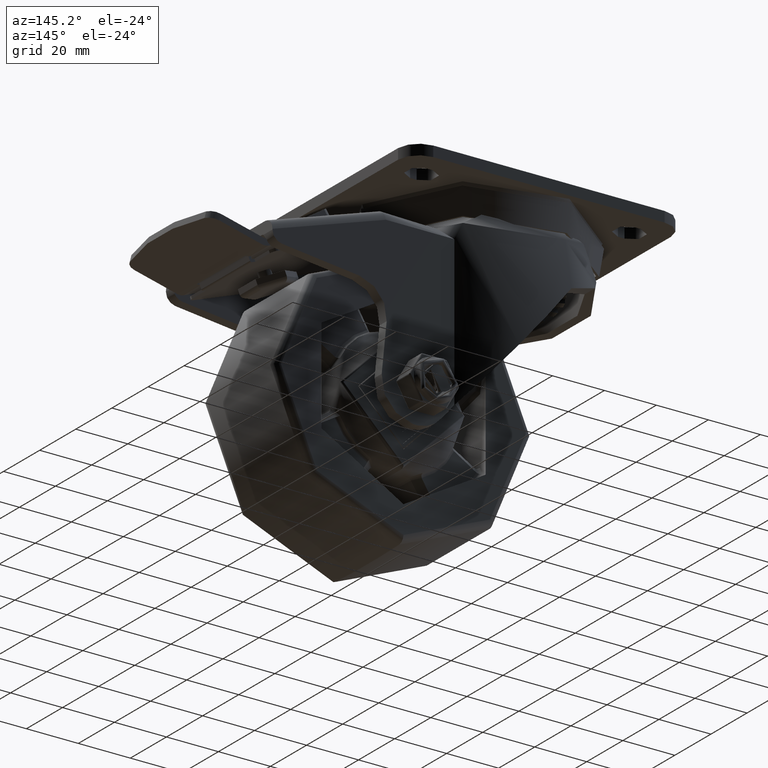
[diagram: clean part render]
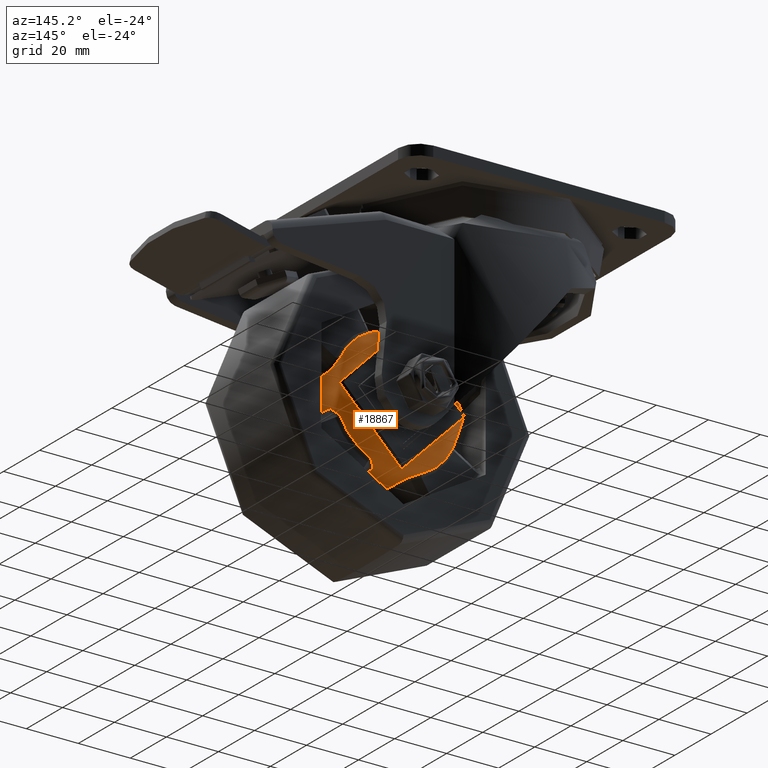
[diagram: same view with one face highlighted and labeled with its STEP entity id]
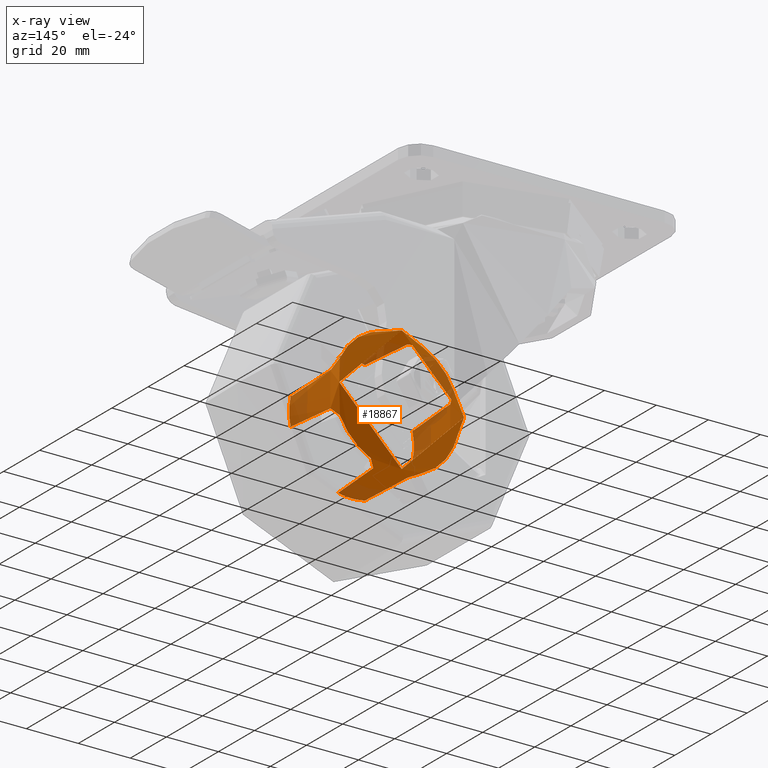
[diagram: x-ray of the same camera — body ghosted, the highlighted face saturated]
A machine part, auxiliary view. The second image highlights one B-rep face of the part: STEP entity #18867.
The next image is the same camera in x-ray: the body ghosted, the highlighted face saturated — about 24% of this face is hidden behind the body in this view.
In plain terms, the highlighted cylindrical surface (bore or boss wall) has radius 24 mm, axis along (0, 1, 0).
Its self-contained STEP definition (entity closure, byte-faithful):
#696=B_SPLINE_CURVE_WITH_KNOTS('',3,(#31149,#31150,#31151,#31152,#31153,
#31154,#31155,#31156,#31157,#31158,#31159,#31160,#31161,#31162),
 .UNSPECIFIED.,.F.,.F.,(4,2,2,2,2,2,4),(-0.0253063753522506,-0.0197658600162352,
-0.0143932390843415,-0.011035351001908,-0.00893667095038703,-0.00683799089886606,
-0.00376049390740104),.UNSPECIFIED.);
#697=B_SPLINE_CURVE_WITH_KNOTS('',3,(#31164,#31165,#31166,#31167,#31168,
#31169,#31170,#31171,#31172,#31173,#31174,#31175,#31176,#31177,#31178,#31179,
#31180,#31181,#31182,#31183,#31184,#31185),.UNSPECIFIED.,.F.,.F.,(4,2,2,
2,2,2,2,2,2,2,4),(-0.00566507899345334,-0.00468851007459817,-0.00376984885088175,
-0.00319568558605899,-0.00283253949673629,-0.00246939340741359,-0.00188835966449728,
-0.00142353267016422,-0.000958705675831167,-0.000324017549976875,-1.92437775949955E-14),
 .UNSPECIFIED.);
#698=B_SPLINE_CURVE_WITH_KNOTS('',3,(#31189,#31190,#31191,#31192,#31193,
#31194,#31195,#31196,#31197,#31198,#31199,#31200,#31201,#31202,#31203,#31204,
#31205,#31206,#31207,#31208,#31209,#31210),.UNSPECIFIED.,.F.,.F.,(4,2,2,
2,2,2,2,2,2,2,4),(-0.00566499455434328,-0.00508498353927795,-0.00451226049977383,
-0.00410714587022253,-0.00370203124067123,-0.00319563795373211,-0.00283249727717164,
-0.00246935660061117,-0.00188833151811443,-0.000958691386119632,-1.27817304099884E-18),
 .UNSPECIFIED.);
#699=B_SPLINE_CURVE_WITH_KNOTS('',3,(#31212,#31213,#31214,#31215,#31216,
#31217,#31218,#31219,#31220,#31221,#31222,#31223,#31224,#31225,#31226,#31227),
 .UNSPECIFIED.,.F.,.F.,(4,2,2,2,2,2,2,4),(-0.0215458982741363,-0.0194708431312115,
-0.0164753288033328,-0.0146031323484086,-0.0127309358934844,-0.00973542156560573,
-0.00494259864099983,0.),.UNSPECIFIED.);
#700=B_SPLINE_CURVE_WITH_KNOTS('',3,(#31231,#31232,#31233,#31234,#31235,
#31236,#31237,#31238,#31239,#31240,#31241,#31242,#31243,#31244,#31245,#31246),
 .UNSPECIFIED.,.F.,.F.,(4,2,2,2,2,2,2,4),(-0.0231755143000461,-0.0186360772790776,
-0.0142341989557143,-0.0114830250036122,-0.00976354128354836,-0.00804405756348456,
-0.00529288361138247,-0.00162960364870268),.UNSPECIFIED.);
#701=B_SPLINE_CURVE_WITH_KNOTS('',3,(#31248,#31249,#31250,#31251,#31252,
#31253,#31254,#31255,#31256,#31257,#31258,#31259,#31260,#31261,#31262,#31263,
#31264,#31265,#31266,#31267,#31268,#31269),.UNSPECIFIED.,.F.,.F.,(4,2,2,
2,2,2,2,2,2,2,4),(-0.00566507899342279,-0.00468851007250411,-0.00376984885006154,
-0.00319568558603494,-0.00283253949671319,-0.00246939340739145,-0.00188835966447666,
-0.00142353267014483,-0.000958705675813001,-0.000324017549738379,-3.59997993075565E-15),
 .UNSPECIFIED.);
#702=B_SPLINE_CURVE_WITH_KNOTS('',3,(#31273,#31274,#31275,#31276,#31277,
#31278,#31279,#31280,#31281,#31282,#31283,#31284,#31285,#31286,#31287,#31288,
#31289,#31290,#31291,#31292,#31293,#31294),.UNSPECIFIED.,.F.,.F.,(4,2,2,
2,2,2,2,2,2,2,4),(-0.00566507899546904,-0.00534106248507371,-0.00470637331931287,
-0.00424154632481291,-0.00377671933031295,-0.003195685587188,-0.00283253949773491,
-0.00246939340828181,-0.00189523358433277,-0.000976577866014304,-7.71781116656822E-16),
 .UNSPECIFIED.);
#703=B_SPLINE_CURVE_WITH_KNOTS('',3,(#31296,#31297,#31298,#31299,#31300,
#31301,#31302,#31303,#31304,#31305,#31306,#31307,#31308,#31309,#31310,#31311),
 .UNSPECIFIED.,.F.,.F.,(4,2,2,2,2,2,2,4),(-0.0215459106424423,-0.0178824502777242,
-0.0151313040811512,-0.0134118377082931,-0.011692371335435,-0.00894122513886208,
-0.00453939122434537,0.),.UNSPECIFIED.);
#704=B_SPLINE_CURVE_WITH_KNOTS('',3,(#31315,#31316,#31317,#31318,#31319,
#31320,#31321,#31322,#31323,#31324,#31325,#31326,#31327,#31328,#31329,#31330),
 .UNSPECIFIED.,.F.,.F.,(4,2,2,2,2,2,2,4),(-0.0231754741300611,-0.0186360365392161,
-0.0142341576632453,-0.0114829833657635,-0.00976349942983734,-0.00804401549391122,
-0.00529284119642942,-0.00162956347850965),.UNSPECIFIED.);
#705=B_SPLINE_CURVE_WITH_KNOTS('',3,(#31332,#31333,#31334,#31335,#31336,
#31337,#31338,#31339,#31340,#31341,#31342,#31343,#31344,#31345,#31346,#31347,
#31348,#31349,#31350,#31351,#31352,#31353),.UNSPECIFIED.,.F.,.F.,(4,2,2,
2,2,2,2,2,2,2,4),(-0.00566507899342271,-0.00468851007250425,-0.00376984885006156,
-0.00319568558603488,-0.00283253949671314,-0.0024693934073914,-0.00188835966447661,
-0.00142353267014478,-0.000958705675812957,-0.000324017549737817,-3.56104385430258E-15),
 .UNSPECIFIED.);
#706=B_SPLINE_CURVE_WITH_KNOTS('',3,(#31357,#31358,#31359,#31360,#31361,
#31362,#31363,#31364,#31365,#31366,#31367,#31368,#31369,#31370,#31371,#31372,
#31373,#31374,#31375,#31376,#31377,#31378),.UNSPECIFIED.,.F.,.F.,(4,2,2,
2,2,2,2,2,2,2,4),(-0.00566499455440137,-0.00508498353831087,-0.00451226049994327,
-0.00410714587035002,-0.00370203124075677,-0.0031956379537652,-0.00283249727720106,
-0.00246935660063692,-0.00188833151813429,-0.000958691386130091,-7.55966129490543E-16),
 .UNSPECIFIED.);
#707=B_SPLINE_CURVE_WITH_KNOTS('',3,(#31380,#31381,#31382,#31383,#31384,
#31385,#31386,#31387,#31388,#31389,#31390,#31391,#31392,#31393,#31394,#31395),
 .UNSPECIFIED.,.F.,.F.,(4,2,2,2,2,2,2,4),(-0.0215459106423478,-0.0178824501994551,
-0.0151313040149245,-0.0134118376495929,-0.0116923712842613,-0.0089412250997308,
-0.00453939120448193,-6.5291841873689E-15),.UNSPECIFIED.);
#708=B_SPLINE_CURVE_WITH_KNOTS('',3,(#31399,#31400,#31401,#31402,#31403,
#31404,#31405,#31406,#31407,#31408,#31409,#31410,#31411,#31412),
 .UNSPECIFIED.,.F.,.F.,(4,2,2,2,2,2,4),(-0.0253063752085554,-0.0197658252834457,
-0.0143931708106121,-0.0110352617650911,-0.00893656861164048,-0.00683787545818985,
-0.00376049391206395),.UNSPECIFIED.);
#709=B_SPLINE_CURVE_WITH_KNOTS('',3,(#31414,#31415,#31416,#31417,#31418,
#31419,#31420,#31421,#31422,#31423,#31424,#31425,#31426,#31427,#31428,#31429,
#31430,#31431,#31432,#31433,#31434,#31435),.UNSPECIFIED.,.F.,.F.,(4,2,2,
2,2,2,2,2,2,2,4),(-0.00566507899345335,-0.00468851007459754,-0.00376984885088151,
-0.00319568558605899,-0.00283253949673629,-0.00246939340741359,-0.00188835966449727,
-0.00142353267016422,-0.000958705675831162,-0.000324017549976971,-1.92352215834332E-14),
 .UNSPECIFIED.);
#710=B_SPLINE_CURVE_WITH_KNOTS('',3,(#31439,#31440,#31441,#31442,#31443,
#31444,#31445,#31446,#31447,#31448,#31449,#31450,#31451,#31452,#31453,#31454,
#31455,#31456,#31457,#31458,#31459,#31460),.UNSPECIFIED.,.F.,.F.,(4,2,2,
2,2,2,2,2,2,2,4),(-0.0056649945543433,-0.00508498353927723,-0.00451226049975476,
-0.00410714587020933,-0.0037020312406639,-0.00319563795373212,-0.00283249727717165,
-0.00246935660061118,-0.00188833151811443,-0.000958691386119635,-4.81821968208872E-19),
 .UNSPECIFIED.);
#711=B_SPLINE_CURVE_WITH_KNOTS('',3,(#31461,#31462,#31463,#31464,#31465,
#31466,#31467,#31468,#31469,#31470,#31471,#31472,#31473,#31474,#31475,#31476),
 .UNSPECIFIED.,.F.,.F.,(4,2,2,2,2,2,2,4),(-0.0215458982741363,-0.0194708431311988,
-0.0164753288033221,-0.0146031323483991,-0.0127309358934761,-0.00973542156559941,
-0.00494259864099662,0.),.UNSPECIFIED.);
#2518=FACE_OUTER_BOUND('',#3693,.T.);
#3693=EDGE_LOOP('',(#14857,#14858,#14859,#14860,#14861,#14862,#14863,#14864,
#14865,#14866,#14867,#14868,#14869,#14870,#14871,#14872,#14873,#14874,#14875,
#14876,#14877,#14878,#14879,#14880,#14881,#14882,#14883,#14884));
#5247=LINE('',#31147,#6536);
#6536=VECTOR('',#23969,24.);
#7478=CIRCLE('',#20655,24.);
#7479=CIRCLE('',#20656,24.);
#7481=CIRCLE('',#20659,24.);
#7482=CIRCLE('',#20660,24.);
#7483=CIRCLE('',#20661,24.);
#7484=CIRCLE('',#20662,24.);
#7485=CIRCLE('',#20663,24.);
#7486=CIRCLE('',#20664,24.);
#7487=CIRCLE('',#20665,24.);
#7488=CIRCLE('',#20666,24.);
#8732=VERTEX_POINT('',#31137);
#8733=VERTEX_POINT('',#31139);
#8734=VERTEX_POINT('',#31141);
#8735=VERTEX_POINT('',#31145);
#8736=VERTEX_POINT('',#31148);
#8737=VERTEX_POINT('',#31163);
#8738=VERTEX_POINT('',#31186);
#8739=VERTEX_POINT('',#31188);
#8740=VERTEX_POINT('',#31211);
#8741=VERTEX_POINT('',#31228);
#8742=VERTEX_POINT('',#31230);
#8743=VERTEX_POINT('',#31247);
#8744=VERTEX_POINT('',#31270);
#8745=VERTEX_POINT('',#31272);
#8746=VERTEX_POINT('',#31295);
#8747=VERTEX_POINT('',#31312);
#8748=VERTEX_POINT('',#31314);
#8749=VERTEX_POINT('',#31331);
#8750=VERTEX_POINT('',#31354);
#8751=VERTEX_POINT('',#31356);
#8752=VERTEX_POINT('',#31379);
#8753=VERTEX_POINT('',#31396);
#8754=VERTEX_POINT('',#31398);
#8755=VERTEX_POINT('',#31413);
#8756=VERTEX_POINT('',#31436);
#8757=VERTEX_POINT('',#31438);
#10933=EDGE_CURVE('',#8732,#8733,#7478,.T.);
#10934=EDGE_CURVE('',#8733,#8734,#7479,.T.);
#10936=EDGE_CURVE('',#8735,#8735,#7481,.T.);
#10937=EDGE_CURVE('',#8735,#8733,#5247,.T.);
#10938=EDGE_CURVE('',#8736,#8732,#696,.T.);
#10939=EDGE_CURVE('',#8737,#8736,#697,.T.);
#10940=EDGE_CURVE('',#8738,#8737,#7482,.T.);
#10941=EDGE_CURVE('',#8739,#8738,#698,.T.);
#10942=EDGE_CURVE('',#8740,#8739,#699,.T.);
#10943=EDGE_CURVE('',#8741,#8740,#7483,.T.);
#10944=EDGE_CURVE('',#8742,#8741,#700,.T.);
#10945=EDGE_CURVE('',#8743,#8742,#701,.T.);
#10946=EDGE_CURVE('',#8744,#8743,#7484,.T.);
#10947=EDGE_CURVE('',#8745,#8744,#702,.T.);
#10948=EDGE_CURVE('',#8746,#8745,#703,.T.);
#10949=EDGE_CURVE('',#8747,#8746,#7485,.T.);
#10950=EDGE_CURVE('',#8748,#8747,#704,.T.);
#10951=EDGE_CURVE('',#8749,#8748,#705,.T.);
#10952=EDGE_CURVE('',#8750,#8749,#7486,.T.);
#10953=EDGE_CURVE('',#8751,#8750,#706,.T.);
#10954=EDGE_CURVE('',#8752,#8751,#707,.T.);
#10955=EDGE_CURVE('',#8753,#8752,#7487,.T.);
#10956=EDGE_CURVE('',#8754,#8753,#708,.T.);
#10957=EDGE_CURVE('',#8755,#8754,#709,.T.);
#10958=EDGE_CURVE('',#8756,#8755,#7488,.T.);
#10959=EDGE_CURVE('',#8757,#8756,#710,.T.);
#10960=EDGE_CURVE('',#8734,#8757,#711,.T.);
#14857=ORIENTED_EDGE('',*,*,#10936,.F.);
#14858=ORIENTED_EDGE('',*,*,#10937,.T.);
#14859=ORIENTED_EDGE('',*,*,#10933,.F.);
#14860=ORIENTED_EDGE('',*,*,#10938,.F.);
#14861=ORIENTED_EDGE('',*,*,#10939,.F.);
#14862=ORIENTED_EDGE('',*,*,#10940,.F.);
#14863=ORIENTED_EDGE('',*,*,#10941,.F.);
#14864=ORIENTED_EDGE('',*,*,#10942,.F.);
#14865=ORIENTED_EDGE('',*,*,#10943,.F.);
#14866=ORIENTED_EDGE('',*,*,#10944,.F.);
#14867=ORIENTED_EDGE('',*,*,#10945,.F.);
#14868=ORIENTED_EDGE('',*,*,#10946,.F.);
#14869=ORIENTED_EDGE('',*,*,#10947,.F.);
#14870=ORIENTED_EDGE('',*,*,#10948,.F.);
#14871=ORIENTED_EDGE('',*,*,#10949,.F.);
#14872=ORIENTED_EDGE('',*,*,#10950,.F.);
#14873=ORIENTED_EDGE('',*,*,#10951,.F.);
#14874=ORIENTED_EDGE('',*,*,#10952,.F.);
#14875=ORIENTED_EDGE('',*,*,#10953,.F.);
#14876=ORIENTED_EDGE('',*,*,#10954,.F.);
#14877=ORIENTED_EDGE('',*,*,#10955,.F.);
#14878=ORIENTED_EDGE('',*,*,#10956,.F.);
#14879=ORIENTED_EDGE('',*,*,#10957,.F.);
#14880=ORIENTED_EDGE('',*,*,#10958,.F.);
#14881=ORIENTED_EDGE('',*,*,#10959,.F.);
#14882=ORIENTED_EDGE('',*,*,#10960,.F.);
#14883=ORIENTED_EDGE('',*,*,#10934,.F.);
#14884=ORIENTED_EDGE('',*,*,#10937,.F.);
#18337=CYLINDRICAL_SURFACE('',#20658,24.);
#18867=ADVANCED_FACE('',(#2518),#18337,.T.);
#20655=AXIS2_PLACEMENT_3D('',#31140,#23959,#23960);
#20656=AXIS2_PLACEMENT_3D('',#31142,#23961,#23962);
#20658=AXIS2_PLACEMENT_3D('',#31144,#23965,#23966);
#20659=AXIS2_PLACEMENT_3D('',#31146,#23967,#23968);
#20660=AXIS2_PLACEMENT_3D('',#31187,#23970,#23971);
#20661=AXIS2_PLACEMENT_3D('',#31229,#23972,#23973);
#20662=AXIS2_PLACEMENT_3D('',#31271,#23974,#23975);
#20663=AXIS2_PLACEMENT_3D('',#31313,#23976,#23977);
#20664=AXIS2_PLACEMENT_3D('',#31355,#23978,#23979);
#20665=AXIS2_PLACEMENT_3D('',#31397,#23980,#23981);
#20666=AXIS2_PLACEMENT_3D('',#31437,#23982,#23983);
#23959=DIRECTION('center_axis',(0.,-1.,0.));
#23960=DIRECTION('ref_axis',(2.78699993901511E-15,0.,-1.));
#23961=DIRECTION('center_axis',(0.,-1.,0.));
#23962=DIRECTION('ref_axis',(2.78699993901511E-15,0.,-1.));
#23965=DIRECTION('center_axis',(0.,1.,0.));
#23966=DIRECTION('ref_axis',(0.,0.,1.));
#23967=DIRECTION('center_axis',(0.,1.,0.));
#23968=DIRECTION('ref_axis',(0.,0.,1.));
#23969=DIRECTION('',(0.,-1.,0.));
#23970=DIRECTION('center_axis',(0.,-1.,0.));
#23971=DIRECTION('ref_axis',(-0.707106781186547,0.,-0.707106781186548));
#23972=DIRECTION('center_axis',(0.,-1.,0.));
#23973=DIRECTION('ref_axis',(-1.,0.,7.27366154732461E-16));
#23974=DIRECTION('center_axis',(0.,-1.,0.));
#23975=DIRECTION('ref_axis',(-0.707106781186547,0.,0.707106781186547));
#23976=DIRECTION('center_axis',(0.,-1.,0.));
#23977=DIRECTION('ref_axis',(-8.88178419700125E-15,0.,1.));
#23978=DIRECTION('center_axis',(0.,-1.,0.));
#23979=DIRECTION('ref_axis',(0.707106781186539,0.,0.707106781186556));
#23980=DIRECTION('center_axis',(0.,-1.,0.));
#23981=DIRECTION('ref_axis',(1.,0.,6.27848127785824E-15));
#23982=DIRECTION('center_axis',(0.,-1.,0.));
#23983=DIRECTION('ref_axis',(0.707106781186553,0.,-0.707106781186542));
#31137=CARTESIAN_POINT('',(-5.18884222375694,-8.74999999980411,-23.4323689868538));
#31139=CARTESIAN_POINT('',(-2.93915231795365E-15,-8.75,-24.));
#31140=CARTESIAN_POINT('Origin',(0.,-8.75,0.));
#31141=CARTESIAN_POINT('',(5.18884207821913,-8.74999998880678,-23.4323689806148));
#31142=CARTESIAN_POINT('Origin',(0.,-8.75,0.));
#31144=CARTESIAN_POINT('Origin',(0.,0.,0.));
#31145=CARTESIAN_POINT('',(-2.93915231795365E-15,19.,-24.));
#31146=CARTESIAN_POINT('Origin',(0.,19.,0.));
#31147=CARTESIAN_POINT('',(-2.93915231795365E-15,0.,-24.));
#31148=CARTESIAN_POINT('',(-6.5935170041983,12.7418637183351,-23.0765147610151));
#31149=CARTESIAN_POINT('Ctrl Pts',(-6.5935170041983,12.7418637183351,-23.0765147610151));
#31150=CARTESIAN_POINT('Ctrl Pts',(-6.48070678170997,10.8991548555933,-23.1087473632051));
#31151=CARTESIAN_POINT('Ctrl Pts',(-6.36575158866413,9.05658296263218,-23.1406976183168));
#31152=CARTESIAN_POINT('Ctrl Pts',(-6.13533558497622,5.42753583527948,-23.2028330300584));
#31153=CARTESIAN_POINT('Ctrl Pts',(-6.01999589742089,3.64105270989446,-23.233042016219));
#31154=CARTESIAN_POINT('Ctrl Pts',(-5.82973058015386,0.738208608646787,
-23.2813217265772));
#31155=CARTESIAN_POINT('Ctrl Pts',(-5.75587028237746,-0.378224049805215,
-23.2996960512953));
#31156=CARTESIAN_POINT('Ctrl Pts',(-5.63481756403043,-2.19235658556535,
-23.3291904579339));
#31157=CARTESIAN_POINT('Ctrl Pts',(-5.58801143333754,-2.89008292393554,
-23.3404469885557));
#31158=CARTESIAN_POINT('Ctrl Pts',(-5.49393030454957,-4.28550311297141,
-23.3627709660786));
#31159=CARTESIAN_POINT('Ctrl Pts',(-5.4466553104521,-4.98319696381572,-23.373838409718));
#31160=CARTESIAN_POINT('Ctrl Pts',(-5.3295125613782,-6.70394846637894,-23.4008847092411));
#31161=CARTESIAN_POINT('Ctrl Pts',(-5.2593909259552,-7.72698828940763,-23.4167467213588));
#31162=CARTESIAN_POINT('Ctrl Pts',(-5.18884221873023,-8.74999999948214,
-23.4323689853493));
#31163=CARTESIAN_POINT('',(-9.99147477722134,16.25,-21.8213297435365));
#31164=CARTESIAN_POINT('Ctrl Pts',(-9.99147477722133,16.25,-21.8213297435365));
#31165=CARTESIAN_POINT('Ctrl Pts',(-9.71015421754308,16.2499999999997,-21.9501398256614));
#31166=CARTESIAN_POINT('Ctrl Pts',(-9.4229414519749,16.207481232944,-22.0748513216873));
#31167=CARTESIAN_POINT('Ctrl Pts',(-8.88200132930954,16.0457925509836,-22.2977684944103));
#31168=CARTESIAN_POINT('Ctrl Pts',(-8.62854396065551,15.9326290897407,-22.3967593274219));
#31169=CARTESIAN_POINT('Ctrl Pts',(-8.23562121306033,15.6942470299413,-22.5433040738836));
#31170=CARTESIAN_POINT('Ctrl Pts',(-8.08971981374976,15.5896389918147,-22.5959696128845));
#31171=CARTESIAN_POINT('Ctrl Pts',(-7.86434757909789,15.4007032136404,-22.6751097362209));
#31172=CARTESIAN_POINT('Ctrl Pts',(-7.78022529001733,15.3231333214185,-22.7040818588312));
#31173=CARTESIAN_POINT('Ctrl Pts',(-7.619059720189,15.1600006014752,-22.7586723601384));
#31174=CARTESIAN_POINT('Ctrl Pts',(-7.54143327236728,15.0738343840563,-22.7844870198244));
#31175=CARTESIAN_POINT('Ctrl Pts',(-7.34900780479029,14.8390623051941,-22.8474858475481));
#31176=CARTESIAN_POINT('Ctrl Pts',(-7.23989824674886,14.6839834101767,-22.882183076263));
#31177=CARTESIAN_POINT('Ctrl Pts',(-7.0644069291412,14.3905090858095,-22.9368879596425));
#31178=CARTESIAN_POINT('Ctrl Pts',(-6.99383786547519,14.2550105274206,-22.9584510905205));
#31179=CARTESIAN_POINT('Ctrl Pts',(-6.86908983682388,13.9769552876022,-22.9960833486492));
#31180=CARTESIAN_POINT('Ctrl Pts',(-6.81426745648567,13.8329895895074,-23.0123466705585));
#31181=CARTESIAN_POINT('Ctrl Pts',(-6.70448108064129,13.4836202416714,-23.0446153493487));
#31182=CARTESIAN_POINT('Ctrl Pts',(-6.65697406305219,13.2752267376191,-23.0583107020396));
#31183=CARTESIAN_POINT('Ctrl Pts',(-6.61115370559698,12.957507089087,-23.0714738647481));
#31184=CARTESIAN_POINT('Ctrl Pts',(-6.6001143132345,12.8496280641901,-23.0746297506588));
#31185=CARTESIAN_POINT('Ctrl Pts',(-6.59351700419716,12.741863718316,-23.0765147610154));
#31186=CARTESIAN_POINT('',(-21.821329743535,16.25,-9.9914747772245));
#31187=CARTESIAN_POINT('Origin',(0.,16.25,0.));
#31188=CARTESIAN_POINT('',(-23.0765147609785,12.7418637183129,-6.5935170043264));
#31189=CARTESIAN_POINT('Ctrl Pts',(-23.0765147609785,12.7418637183129,-6.5935170043264));
#31190=CARTESIAN_POINT('Ctrl Pts',(-23.0731404784114,12.9347684163655,-6.60532658658977));
#31191=CARTESIAN_POINT('Ctrl Pts',(-23.065683909835,13.1280165694712,-6.63143817450925));
#31192=CARTESIAN_POINT('Ctrl Pts',(-23.0425955214674,13.5055743664404,-6.71122153638339));
#31193=CARTESIAN_POINT('Ctrl Pts',(-23.0270669066889,13.6899026083194,-6.76453008421165));
#31194=CARTESIAN_POINT('Ctrl Pts',(-22.9938355198107,13.9933625946072,-6.87647209534485));
#31195=CARTESIAN_POINT('Ctrl Pts',(-22.9781568748693,14.1155235707788,-6.92878338750101));
#31196=CARTESIAN_POINT('Ctrl Pts',(-22.9425831402204,14.3542825695886,-7.04568033983157));
#31197=CARTESIAN_POINT('Ctrl Pts',(-22.9227097150643,14.4705676900569,-7.11018673818309));
#31198=CARTESIAN_POINT('Ctrl Pts',(-22.8733537292473,14.7229722034491,-7.2676054780405));
#31199=CARTESIAN_POINT('Ctrl Pts',(-22.8427069387869,14.8567565811862,-7.36359067793157));
#31200=CARTESIAN_POINT('Ctrl Pts',(-22.7848551949557,15.0725438332583,-7.54031861692666));
#31201=CARTESIAN_POINT('Ctrl Pts',(-22.7592160092648,15.158264188098,-7.61743722265722));
#31202=CARTESIAN_POINT('Ctrl Pts',(-22.704543434201,15.3218637870315,-7.7788797806611));
#31203=CARTESIAN_POINT('Ctrl Pts',(-22.6754889866402,15.3997372324264,-7.86325591771996));
#31204=CARTESIAN_POINT('Ctrl Pts',(-22.5956386031653,15.5905253106284,-8.09068092355629));
#31205=CARTESIAN_POINT('Ctrl Pts',(-22.5422413510288,15.6963790146416,-8.23857039817926));
#31206=CARTESIAN_POINT('Ctrl Pts',(-22.3937296784096,15.9368951619361,-8.63650338185609));
#31207=CARTESIAN_POINT('Ctrl Pts',(-22.2933401103118,16.0505615480172,-8.89324097527614));
#31208=CARTESIAN_POINT('Ctrl Pts',(-22.0703498346123,16.2090493493007,-9.43332704166438));
#31209=CARTESIAN_POINT('Ctrl Pts',(-21.9477817673444,16.25,-9.71530420483106));
#31210=CARTESIAN_POINT('Ctrl Pts',(-21.821329743535,16.25,-9.9914747772245));
#31211=CARTESIAN_POINT('',(-23.4323689806148,-8.74999998880678,-5.18884207821904));
#31212=CARTESIAN_POINT('Ctrl Pts',(-23.4323688996181,-8.74999997691798,
-5.18884191103581));
#31213=CARTESIAN_POINT('Ctrl Pts',(-23.4218353383504,-8.06021648556245,
-5.23641069089187));
#31214=CARTESIAN_POINT('Ctrl Pts',(-23.4111928380432,-7.37042002497598,
-5.28378557180784));
#31215=CARTESIAN_POINT('Ctrl Pts',(-23.3849364552118,-5.68481094104776,
-5.39903913023941));
#31216=CARTESIAN_POINT('Ctrl Pts',(-23.3692115686238,-4.68898323672634,
-5.46669156476252));
#31217=CARTESIAN_POINT('Ctrl Pts',(-23.3433444499392,-3.07071127288752,
-5.57585254571447));
#31218=CARTESIAN_POINT('Ctrl Pts',(-23.3333200379531,-2.44828594867415,
-5.61765153626337));
#31219=CARTESIAN_POINT('Ctrl Pts',(-23.3131302024108,-1.20340824940099,
-5.70085896526715));
#31220=CARTESIAN_POINT('Ctrl Pts',(-23.3029647806774,-0.580955874282029,
-5.74226740181786));
#31221=CARTESIAN_POINT('Ctrl Pts',(-23.2763644899415,1.03745661747474,-5.84939915624499));
#31222=CARTESIAN_POINT('Ctrl Pts',(-23.2598275148417,2.03343854165122,-5.91480413622172));
#31223=CARTESIAN_POINT('Ctrl Pts',(-23.2164494117751,4.62308853653475,-6.08341645171722));
#31224=CARTESIAN_POINT('Ctrl Pts',(-23.1893792971697,6.21681491048654,-6.18575785475571));
#31225=CARTESIAN_POINT('Ctrl Pts',(-23.1337982469256,9.45427485661758,-6.39053861419281));
#31226=CARTESIAN_POINT('Ctrl Pts',(-23.1052689122302,11.0980147677472,-6.49288094084484));
#31227=CARTESIAN_POINT('Ctrl Pts',(-23.0765147610153,12.7418637183208,-6.59351700419753));
#31228=CARTESIAN_POINT('',(-23.4323689864823,-8.7499999972244,5.18884219059735));
#31229=CARTESIAN_POINT('Origin',(0.,-8.75,0.));
#31230=CARTESIAN_POINT('',(-23.0765147610151,12.7418637183355,6.5935170041984));
#31231=CARTESIAN_POINT('Ctrl Pts',(-23.0765147610151,12.7418637183355,6.59351700419841));
#31232=CARTESIAN_POINT('Ctrl Pts',(-23.1029234719002,11.2321014808732,6.50108969929079));
#31233=CARTESIAN_POINT('Ctrl Pts',(-23.1291424795752,9.72243139973679,6.40722351854938));
#31234=CARTESIAN_POINT('Ctrl Pts',(-23.1802807576898,6.7490170217214,6.21962598481));
#31235=CARTESIAN_POINT('Ctrl Pts',(-23.2052152206345,5.28526733133269,6.12597683492039));
#31236=CARTESIAN_POINT('Ctrl Pts',(-23.2452375434269,2.90680740165086,5.97182415549619));
#31237=CARTESIAN_POINT('Ctrl Pts',(-23.260511413537,1.99204713765028,5.91206086077027));
#31238=CARTESIAN_POINT('Ctrl Pts',(-23.2851115963071,0.505612006297177,
5.81421394039519));
#31239=CARTESIAN_POINT('Ctrl Pts',(-23.2945203487366,-0.0660815832379631,
5.77640472607563));
#31240=CARTESIAN_POINT('Ctrl Pts',(-23.3132243337052,-1.20944597768444,
5.70044743888327));
#31241=CARTESIAN_POINT('Ctrl Pts',(-23.3225195663279,-1.78111686113033,
5.66229936178149));
#31242=CARTESIAN_POINT('Ctrl Pts',(-23.3465294502814,-3.26743285592419,
5.56269163864382));
#31243=CARTESIAN_POINT('Ctrl Pts',(-23.3611494523403,-4.1820609758285,5.50097821908232));
#31244=CARTESIAN_POINT('Ctrl Pts',(-23.394837471324,-6.31448644778145,5.35619146768462));
#31245=CARTESIAN_POINT('Ctrl Pts',(-23.4137730641852,-7.53226369242775,
5.27281926551447));
#31246=CARTESIAN_POINT('Ctrl Pts',(-23.4323689699887,-8.74999999410845,
5.18884214874827));
#31247=CARTESIAN_POINT('',(-21.8213297435365,16.25,9.99147477722138));
#31248=CARTESIAN_POINT('Ctrl Pts',(-21.8213297435365,16.25,9.99147477722137));
#31249=CARTESIAN_POINT('Ctrl Pts',(-21.9501398259335,16.2499999999997,9.71015421694869));
#31250=CARTESIAN_POINT('Ctrl Pts',(-22.074851322214,16.2074812327614,9.42294145076001));
#31251=CARTESIAN_POINT('Ctrl Pts',(-22.297768494952,16.0457925504031,8.88200132793564));
#31252=CARTESIAN_POINT('Ctrl Pts',(-22.3967593277971,15.9326290892136,8.62854395967013));
#31253=CARTESIAN_POINT('Ctrl Pts',(-22.5433040740289,15.6942470296529,8.2356212126581));
#31254=CARTESIAN_POINT('Ctrl Pts',(-22.595969612951,15.5896389916558,8.08971981356043));
#31255=CARTESIAN_POINT('Ctrl Pts',(-22.6751097362205,15.4007032136411,7.86434757909882));
#31256=CARTESIAN_POINT('Ctrl Pts',(-22.7040818588316,15.3231333214173,7.78022529001623));
#31257=CARTESIAN_POINT('Ctrl Pts',(-22.758672360138,15.1600006014762,7.61905972019013));
#31258=CARTESIAN_POINT('Ctrl Pts',(-22.7844870198237,15.0738343840585,7.54143327236931));
#31259=CARTESIAN_POINT('Ctrl Pts',(-22.8474858475468,14.8390623051989,7.34900780479407));
#31260=CARTESIAN_POINT('Ctrl Pts',(-22.8821830762617,14.683983410183,7.23989824675312));
#31261=CARTESIAN_POINT('Ctrl Pts',(-22.9368879596412,14.3905090858174,7.06440692914556));
#31262=CARTESIAN_POINT('Ctrl Pts',(-22.9584510905192,14.2550105274289,6.99383786547937));
#31263=CARTESIAN_POINT('Ctrl Pts',(-22.9960833486481,13.9769552876107,6.86908983682738));
#31264=CARTESIAN_POINT('Ctrl Pts',(-23.0123466705574,13.8329895895177,6.81426745648946));
#31265=CARTESIAN_POINT('Ctrl Pts',(-23.0446153493542,13.4836202416134,6.70448108062248));
#31266=CARTESIAN_POINT('Ctrl Pts',(-23.0583107020484,13.2752267374871,6.6569740630219));
#31267=CARTESIAN_POINT('Ctrl Pts',(-23.0714738647519,12.9575070889543,6.61115370558368));
#31268=CARTESIAN_POINT('Ctrl Pts',(-23.0746297506597,12.8496280641319,6.60011431323142));
#31269=CARTESIAN_POINT('Ctrl Pts',(-23.0765147610151,12.7418637183319,6.59351700419819));
#31270=CARTESIAN_POINT('',(-9.99147477722448,16.25,21.821329743535));
#31271=CARTESIAN_POINT('Origin',(0.,16.25,0.));
#31272=CARTESIAN_POINT('',(-6.59351700419842,12.7418637183359,23.0765147610151));
#31273=CARTESIAN_POINT('Ctrl Pts',(-6.59351700420421,12.7418637183344,23.0765147610134));
#31274=CARTESIAN_POINT('Ctrl Pts',(-6.6001142920756,12.8496277184625,23.0746297567044));
#31275=CARTESIAN_POINT('Ctrl Pts',(-6.61115363469704,12.9575063966724,23.0714738850077));
#31276=CARTESIAN_POINT('Ctrl Pts',(-6.65697390771699,13.2752260537083,23.0583107468763));
#31277=CARTESIAN_POINT('Ctrl Pts',(-6.70448097628516,13.4836199086393,23.0446153800167));
#31278=CARTESIAN_POINT('Ctrl Pts',(-6.81426745421717,13.8329895829419,23.0123466712287));
#31279=CARTESIAN_POINT('Ctrl Pts',(-6.86908983171299,13.9769552751352,22.9960833501774));
#31280=CARTESIAN_POINT('Ctrl Pts',(-6.99383786147597,14.2550105195482,22.9584510917404));
#31281=CARTESIAN_POINT('Ctrl Pts',(-7.06440692545239,14.3905090789882,22.9368879607764));
#31282=CARTESIAN_POINT('Ctrl Pts',(-7.23989824172619,14.6839834025609,22.8821830778487));
#31283=CARTESIAN_POINT('Ctrl Pts',(-7.34900779756711,14.8390622949326,22.8474858498457));
#31284=CARTESIAN_POINT('Ctrl Pts',(-7.54143325789649,15.0738343672861,22.784487024604));
#31285=CARTESIAN_POINT('Ctrl Pts',(-7.61905970205972,15.1600005816938,22.7586723661897));
#31286=CARTESIAN_POINT('Ctrl Pts',(-7.78022526287416,15.3231332953515,22.7040818681147));
#31287=CARTESIAN_POINT('Ctrl Pts',(-7.86434756121859,15.4007031977837,22.6751097424302));
#31288=CARTESIAN_POINT('Ctrl Pts',(-8.08971897351494,15.5896382887666,22.5959699080445));
#31289=CARTESIAN_POINT('Ctrl Pts',(-8.23561945203825,15.6942457687033,22.5433047097702));
#31290=CARTESIAN_POINT('Ctrl Pts',(-8.62853967813886,15.9326268001042,22.3967609580807));
#31291=CARTESIAN_POINT('Ctrl Pts',(-8.88199536708444,16.0457900325343,22.2977708453277));
#31292=CARTESIAN_POINT('Ctrl Pts',(-9.42293618417272,16.2074804410895,22.0748536052604));
#31293=CARTESIAN_POINT('Ctrl Pts',(-9.71015164013431,16.2499999999924,21.9501410057964));
#31294=CARTESIAN_POINT('Ctrl Pts',(-9.99147477722367,16.2499999999928,21.8213297435354));
#31295=CARTESIAN_POINT('',(-5.18884219061563,-8.749999997226,23.4323689864827));
#31296=CARTESIAN_POINT('Ctrl Pts',(-5.1888421487876,-8.74999999411205,23.4323689699978));
#31297=CARTESIAN_POINT('Ctrl Pts',(-5.27282340117469,-7.53220372290843,
23.4137721484127));
#31298=CARTESIAN_POINT('Ctrl Pts',(-5.35619967915937,-6.31436650535971,
23.3948356062834));
#31299=CARTESIAN_POINT('Ctrl Pts',(-5.50098975811053,-4.18189028003904,
23.3611467333028));
#31300=CARTESIAN_POINT('Ctrl Pts',(-5.56270250626637,-3.26727138464041,
23.3465268590619));
#31301=CARTESIAN_POINT('Ctrl Pts',(-5.66230914940127,-1.78097038063365,
23.322517189348));
#31302=CARTESIAN_POINT('Ctrl Pts',(-5.70045681376728,-1.20930526310677,
23.3132220406957));
#31303=CARTESIAN_POINT('Ctrl Pts',(-5.77641328128308,-0.0659524009319223,
23.2945182265747));
#31304=CARTESIAN_POINT('Ctrl Pts',(-5.81422208879441,0.505735424252186,
23.2851095609895));
#31305=CARTESIAN_POINT('Ctrl Pts',(-5.91206795950911,1.99215556644969,23.2605096075048));
#31306=CARTESIAN_POINT('Ctrl Pts',(-5.97183061627935,2.90690660551262,23.2452358819144));
#31307=CARTESIAN_POINT('Ctrl Pts',(-6.1259816599697,5.28534254813695,23.2052139424971));
#31308=CARTESIAN_POINT('Ctrl Pts',(-6.21962982589631,6.74907747506797,23.1802797229774));
#31309=CARTESIAN_POINT('Ctrl Pts',(-6.40722541253457,9.72246186045333,23.1291419505455));
#31310=CARTESIAN_POINT('Ctrl Pts',(-6.50109063175411,11.2321167122805,23.102923205473));
#31311=CARTESIAN_POINT('Ctrl Pts',(-6.59351700419841,12.7418637183359,23.0765147610151));
#31312=CARTESIAN_POINT('',(5.18884219059688,-8.74999999722447,23.4323689864823));
#31313=CARTESIAN_POINT('Origin',(0.,-8.75,0.));
#31314=CARTESIAN_POINT('',(6.59351700419811,12.7418637183355,23.0765147610152));
#31315=CARTESIAN_POINT('Ctrl Pts',(6.59351700419811,12.7418637183355,23.0765147610152));
#31316=CARTESIAN_POINT('Ctrl Pts',(6.50108968768726,11.2321012913391,23.1029234752156));
#31317=CARTESIAN_POINT('Ctrl Pts',(6.40722349498126,9.72243102069867,23.1291424861583));
#31318=CARTESIAN_POINT('Ctrl Pts',(6.21962593701438,6.74901626948946,23.180280770565));
#31319=CARTESIAN_POINT('Ctrl Pts',(6.12597677488192,5.28526639540879,23.2052152365384));
#31320=CARTESIAN_POINT('Ctrl Pts',(5.9718240751064,2.90680616728848,23.2452375641006));
#31321=CARTESIAN_POINT('Ctrl Pts',(5.91206077244349,1.99204578851847,23.2605114360087));
#31322=CARTESIAN_POINT('Ctrl Pts',(5.81421383900976,0.50561047068939,23.2851116216313));
#31323=CARTESIAN_POINT('Ctrl Pts',(5.77640461962969,-0.0660831905506833,
23.294520375141));
#31324=CARTESIAN_POINT('Ctrl Pts',(5.70044732223666,-1.2094477285155,23.3132243622358));
#31325=CARTESIAN_POINT('Ctrl Pts',(5.66229923999847,-1.78111868371788,23.3225195959035));
#31326=CARTESIAN_POINT('Ctrl Pts',(5.56269150342045,-3.26743486507046,23.3465294825233));
#31327=CARTESIAN_POINT('Ctrl Pts',(5.50097807550352,-4.1820630997721,23.3611494861729));
#31328=CARTESIAN_POINT('Ctrl Pts',(5.35619136550913,-6.31448794022271,23.3948374945307));
#31329=CARTESIAN_POINT('Ctrl Pts',(5.27281921405412,-7.53226443862991,23.4137730755803));
#31330=CARTESIAN_POINT('Ctrl Pts',(5.18884214874753,-8.7499999941087,23.4323689699887));
#31331=CARTESIAN_POINT('',(9.9914747772211,16.25,21.8213297435366));
#31332=CARTESIAN_POINT('Ctrl Pts',(9.9914747772211,16.25,21.8213297435366));
#31333=CARTESIAN_POINT('Ctrl Pts',(9.71015421694848,16.2499999999997,21.9501398259336));
#31334=CARTESIAN_POINT('Ctrl Pts',(9.42294145075986,16.2074812327614,22.074851322214));
#31335=CARTESIAN_POINT('Ctrl Pts',(8.88200132793551,16.0457925504032,22.2977684949521));
#31336=CARTESIAN_POINT('Ctrl Pts',(8.62854395966996,15.9326290892137,22.3967593277972));
#31337=CARTESIAN_POINT('Ctrl Pts',(8.23562121265787,15.694247029653,22.5433040740289));
#31338=CARTESIAN_POINT('Ctrl Pts',(8.08971981356018,15.5896389916558,22.5959696129511));
#31339=CARTESIAN_POINT('Ctrl Pts',(7.86434757909855,15.4007032136412,22.6751097362206));
#31340=CARTESIAN_POINT('Ctrl Pts',(7.78022529001595,15.3231333214173,22.7040818588317));
#31341=CARTESIAN_POINT('Ctrl Pts',(7.61905972018985,15.1600006014763,22.7586723601381));
#31342=CARTESIAN_POINT('Ctrl Pts',(7.54143327236905,15.0738343840585,22.7844870198239));
#31343=CARTESIAN_POINT('Ctrl Pts',(7.34900780479381,14.839062305199,22.8474858475469));
#31344=CARTESIAN_POINT('Ctrl Pts',(7.23989824675284,14.683983410183,22.8821830762618));
#31345=CARTESIAN_POINT('Ctrl Pts',(7.06440692914528,14.3905090858174,22.9368879596413));
#31346=CARTESIAN_POINT('Ctrl Pts',(6.99383786547909,14.2550105274289,22.9584510905193));
#31347=CARTESIAN_POINT('Ctrl Pts',(6.86908983682709,13.9769552876107,22.9960833486482));
#31348=CARTESIAN_POINT('Ctrl Pts',(6.81426745648918,13.8329895895177,23.0123466705575));
#31349=CARTESIAN_POINT('Ctrl Pts',(6.70448108062215,13.4836202416133,23.0446153493543));
#31350=CARTESIAN_POINT('Ctrl Pts',(6.65697406302155,13.2752267374868,23.0583107020485));
#31351=CARTESIAN_POINT('Ctrl Pts',(6.61115370558337,12.957507088954,23.071473864752));
#31352=CARTESIAN_POINT('Ctrl Pts',(6.60011431323112,12.8496280641317,23.0746297506597));
#31353=CARTESIAN_POINT('Ctrl Pts',(6.5935170041979,12.7418637183319,23.0765147610152));
#31354=CARTESIAN_POINT('',(21.8213297435349,16.25,9.99147477722475));
#31355=CARTESIAN_POINT('Origin',(0.,16.25,0.));
#31356=CARTESIAN_POINT('',(23.0765147610134,12.7418637183301,6.59351700420433));
#31357=CARTESIAN_POINT('Ctrl Pts',(23.0765147610134,12.7418637183301,6.59351700420432));
#31358=CARTESIAN_POINT('Ctrl Pts',(23.0731404784398,12.9347684167235,6.60532658649068));
#31359=CARTESIAN_POINT('Ctrl Pts',(23.065683909842,13.1280165701717,6.63143817448566));
#31360=CARTESIAN_POINT('Ctrl Pts',(23.042595521445,13.5055743670822,6.71122153646029));
#31361=CARTESIAN_POINT('Ctrl Pts',(23.0270669066894,13.6899026085847,6.76453008420896));
#31362=CARTESIAN_POINT('Ctrl Pts',(22.9938355198476,13.9933625945374,6.8764720952215));
#31363=CARTESIAN_POINT('Ctrl Pts',(22.9781568749043,14.1155235707208,6.92878338738519));
#31364=CARTESIAN_POINT('Ctrl Pts',(22.9425831402513,14.3542825695489,7.04568033973105));
#31365=CARTESIAN_POINT('Ctrl Pts',(22.9227097150927,14.4705676900261,7.11018673809144));
#31366=CARTESIAN_POINT('Ctrl Pts',(22.8733537292693,14.7229722034377,7.26760547797119));
#31367=CARTESIAN_POINT('Ctrl Pts',(22.8427069388047,14.8567565811851,7.36359067787636));
#31368=CARTESIAN_POINT('Ctrl Pts',(22.7848551949675,15.072543833265,7.5403186168909));
#31369=CARTESIAN_POINT('Ctrl Pts',(22.7592160092754,15.1582641881036,7.61743722262568));
#31370=CARTESIAN_POINT('Ctrl Pts',(22.7045434342103,15.3218637870318,7.77887978063423));
#31371=CARTESIAN_POINT('Ctrl Pts',(22.6754889866489,15.3997372324245,7.86325591769515));
#31372=CARTESIAN_POINT('Ctrl Pts',(22.5956386031725,15.5905253106219,8.09068092353644));
#31373=CARTESIAN_POINT('Ctrl Pts',(22.5422413510351,15.6963790146335,8.23857039816207));
#31374=CARTESIAN_POINT('Ctrl Pts',(22.3937296784134,15.9368951619263,8.63650338184638));
#31375=CARTESIAN_POINT('Ctrl Pts',(22.2933401103146,16.0505615480074,8.89324097526899));
#31376=CARTESIAN_POINT('Ctrl Pts',(22.0703498346146,16.2090493492918,9.43332704165919));
#31377=CARTESIAN_POINT('Ctrl Pts',(21.9477817673459,16.2499999999926,9.71530420482759));
#31378=CARTESIAN_POINT('Ctrl Pts',(21.8213297435353,16.249999999993,9.99147477722384));
#31379=CARTESIAN_POINT('',(23.4323689864827,-8.7499999972259,5.18884219061561));
#31380=CARTESIAN_POINT('Ctrl Pts',(23.4323689699978,-8.74999999411176,5.1888421487876));
#31381=CARTESIAN_POINT('Ctrl Pts',(23.413772148016,-7.53220369692566,5.27282340296651));
#31382=CARTESIAN_POINT('Ctrl Pts',(23.3948356054755,-6.31436645339761,5.3561996827168));
#31383=CARTESIAN_POINT('Ctrl Pts',(23.3611467321251,-4.18189020610932,5.5009897631082));
#31384=CARTESIAN_POINT('Ctrl Pts',(23.3465268579399,-3.26727131472335,5.5627025109721));
#31385=CARTESIAN_POINT('Ctrl Pts',(23.3225171883193,-1.78097031723858,5.66230915363731));
#31386=CARTESIAN_POINT('Ctrl Pts',(23.3132220397035,-1.20930520222049,5.7004568178238));
#31387=CARTESIAN_POINT('Ctrl Pts',(23.2945182256569,-0.065952345063388,
5.77641328498311));
#31388=CARTESIAN_POINT('Ctrl Pts',(23.285109560109,0.505735477643233,5.81422209231954));
#31389=CARTESIAN_POINT('Ctrl Pts',(23.2605096067231,1.99215561337875,5.91206796258164));
#31390=CARTESIAN_POINT('Ctrl Pts',(23.245235881195,2.90690664846042,5.97183061907652));
#31391=CARTESIAN_POINT('Ctrl Pts',(23.2052139419434,5.28534258072272,6.12598166206021));
#31392=CARTESIAN_POINT('Ctrl Pts',(23.1802797225289,6.74907750126642,6.2196298275611));
#31393=CARTESIAN_POINT('Ctrl Pts',(23.1291419503161,9.72246187366113,6.40722541335604));
#31394=CARTESIAN_POINT('Ctrl Pts',(23.1029232053574,11.2321167188844,6.50109063215865));
#31395=CARTESIAN_POINT('Ctrl Pts',(23.0765147610151,12.7418637183313,6.5935170041984));
#31396=CARTESIAN_POINT('',(23.4323689868536,-8.74999999980394,-5.18884222375434));
#31397=CARTESIAN_POINT('Origin',(0.,-8.75,0.));
#31398=CARTESIAN_POINT('',(23.0765147610151,12.7418637183351,-6.59351700419818));
#31399=CARTESIAN_POINT('Ctrl Pts',(23.0765147610151,12.7418637183351,-6.59351700419818));
#31400=CARTESIAN_POINT('Ctrl Pts',(23.1087475644313,10.8991433516759,-6.48070607744261));
#31401=CARTESIAN_POINT('Ctrl Pts',(23.1406980172575,9.05655995627624,-6.36575015328021));
#31402=CARTESIAN_POINT('Ctrl Pts',(23.2028338070788,5.42749016799404,-6.13533266089016));
#31403=CARTESIAN_POINT('Ctrl Pts',(23.2330429739385,3.64099588428017,-6.01999221723027));
#31404=CARTESIAN_POINT('Ctrl Pts',(23.2813229655203,0.73813364287079,-5.82972563880372));
#31405=CARTESIAN_POINT('Ctrl Pts',(23.299697395415,-0.378305994445622,-5.75586484818071));
#31406=CARTESIAN_POINT('Ctrl Pts',(23.3291919672335,-2.19244987477742,-5.63481131795442));
#31407=CARTESIAN_POINT('Ctrl Pts',(23.3404485600082,-2.8901805773843,-5.58800487235867));
#31408=CARTESIAN_POINT('Ctrl Pts',(23.362772658823,-4.28560949700198,-5.49392310904028));
#31409=CARTESIAN_POINT('Ctrl Pts',(23.3738401616014,-4.98330771419136,-5.44664779531543));
#31410=CARTESIAN_POINT('Ctrl Pts',(23.4008858993521,-6.70402522349094,-5.32950730029444));
#31411=CARTESIAN_POINT('Ctrl Pts',(23.4167473074203,-7.72702666753076,-5.25938827930679));
#31412=CARTESIAN_POINT('Ctrl Pts',(23.4323689853479,-8.74999999948168,-5.18884221872323));
#31413=CARTESIAN_POINT('',(21.8213297435365,16.25,-9.9914747772212));
#31414=CARTESIAN_POINT('Ctrl Pts',(21.8213297435365,16.25,-9.99147477722121));
#31415=CARTESIAN_POINT('Ctrl Pts',(21.9501398256615,16.2499999999997,-9.71015421754277));
#31416=CARTESIAN_POINT('Ctrl Pts',(22.0748513216875,16.2074812329439,-9.4229414519744));
#31417=CARTESIAN_POINT('Ctrl Pts',(22.2977684944106,16.0457925509834,-8.88200132930899));
#31418=CARTESIAN_POINT('Ctrl Pts',(22.3967593274221,15.9326290897405,-8.62854396065509));
#31419=CARTESIAN_POINT('Ctrl Pts',(22.5433040738837,15.6942470299412,-8.23562121306008));
#31420=CARTESIAN_POINT('Ctrl Pts',(22.5959696128846,15.5896389918146,-8.08971981374956));
#31421=CARTESIAN_POINT('Ctrl Pts',(22.6751097362209,15.4007032136404,-7.86434757909775));
#31422=CARTESIAN_POINT('Ctrl Pts',(22.7040818588312,15.3231333214185,-7.7802252900172));
#31423=CARTESIAN_POINT('Ctrl Pts',(22.7586723601384,15.1600006014751,-7.61905972018886));
#31424=CARTESIAN_POINT('Ctrl Pts',(22.7844870198245,15.0738343840563,-7.54143327236715));
#31425=CARTESIAN_POINT('Ctrl Pts',(22.8474858475481,14.839062305194,-7.34900780479015));
#31426=CARTESIAN_POINT('Ctrl Pts',(22.8821830762631,14.6839834101767,-7.23989824674871));
#31427=CARTESIAN_POINT('Ctrl Pts',(22.9368879596426,14.3905090858095,-7.06440692914105));
#31428=CARTESIAN_POINT('Ctrl Pts',(22.9584510905205,14.2550105274206,-6.99383786547506));
#31429=CARTESIAN_POINT('Ctrl Pts',(22.9960833486492,13.9769552876022,-6.86908983682375));
#31430=CARTESIAN_POINT('Ctrl Pts',(23.0123466705586,13.8329895895073,-6.81426745648554));
#31431=CARTESIAN_POINT('Ctrl Pts',(23.0446153493487,13.4836202416714,-6.70448108064118));
#31432=CARTESIAN_POINT('Ctrl Pts',(23.0583107020397,13.2752267376192,-6.65697406305207));
#31433=CARTESIAN_POINT('Ctrl Pts',(23.0714738647481,12.9575070890871,-6.61115370559686));
#31434=CARTESIAN_POINT('Ctrl Pts',(23.0746297506588,12.8496280641901,-6.60011431323436));
#31435=CARTESIAN_POINT('Ctrl Pts',(23.0765147610155,12.741863718316,-6.59351700419702));
#31436=CARTESIAN_POINT('',(9.99147477722462,16.25,-21.821329743535));
#31437=CARTESIAN_POINT('Origin',(0.,16.25,0.));
#31438=CARTESIAN_POINT('',(6.59351700432653,12.7418637183129,-23.0765147609785));
#31439=CARTESIAN_POINT('Ctrl Pts',(6.59351700432653,12.7418637183129,-23.0765147609785));
#31440=CARTESIAN_POINT('Ctrl Pts',(6.60532658658992,12.9347684163657,-23.0731404784114));
#31441=CARTESIAN_POINT('Ctrl Pts',(6.63143817450945,13.1280165694717,-23.065683909835));
#31442=CARTESIAN_POINT('Ctrl Pts',(6.71122153638498,13.5055743664471,-23.042595521467));
#31443=CARTESIAN_POINT('Ctrl Pts',(6.76453008421542,13.6899026083319,-23.0270669066878));
#31444=CARTESIAN_POINT('Ctrl Pts',(6.87647209535144,13.9933625946228,-22.9938355198087));
#31445=CARTESIAN_POINT('Ctrl Pts',(6.92878338750731,14.1155235707925,-22.9781568748674));
#31446=CARTESIAN_POINT('Ctrl Pts',(7.04568033983696,14.3542825695983,-22.9425831402188));
#31447=CARTESIAN_POINT('Ctrl Pts',(7.11018673818783,14.4705676900648,-22.9227097150628));
#31448=CARTESIAN_POINT('Ctrl Pts',(7.2676054780434,14.722972203453,-22.8733537292463));
#31449=CARTESIAN_POINT('Ctrl Pts',(7.36359067793318,14.856756581188,-22.8427069387863));
#31450=CARTESIAN_POINT('Ctrl Pts',(7.54031861692677,15.0725438332583,-22.7848551949556));
#31451=CARTESIAN_POINT('Ctrl Pts',(7.61743722265733,15.158264188098,-22.7592160092648));
#31452=CARTESIAN_POINT('Ctrl Pts',(7.77887978066121,15.3218637870315,-22.704543434201));
#31453=CARTESIAN_POINT('Ctrl Pts',(7.86325591772008,15.3997372324264,-22.6754889866402));
#31454=CARTESIAN_POINT('Ctrl Pts',(8.09068092355641,15.5905253106284,-22.5956386031653));
#31455=CARTESIAN_POINT('Ctrl Pts',(8.23857039817937,15.6963790146416,-22.5422413510287));
#31456=CARTESIAN_POINT('Ctrl Pts',(8.6365033818562,15.9368951619361,-22.3937296784096));
#31457=CARTESIAN_POINT('Ctrl Pts',(8.89324097527625,16.0505615480172,-22.2933401103117));
#31458=CARTESIAN_POINT('Ctrl Pts',(9.43332704166449,16.2090493493007,-22.0703498346123));
#31459=CARTESIAN_POINT('Ctrl Pts',(9.71530420483118,16.25,-21.9477817673443));
#31460=CARTESIAN_POINT('Ctrl Pts',(9.99147477722462,16.25,-21.821329743535));
#31461=CARTESIAN_POINT('Ctrl Pts',(5.18884191103591,-8.74999997691799,-23.4323688996181));
#31462=CARTESIAN_POINT('Ctrl Pts',(5.23641069089226,-8.06021648555824,-23.4218353383504));
#31463=CARTESIAN_POINT('Ctrl Pts',(5.28378557180852,-7.37042002496757,-23.411192838043));
#31464=CARTESIAN_POINT('Ctrl Pts',(5.39903913024032,-5.68481094103579,-23.3849364552116));
#31465=CARTESIAN_POINT('Ctrl Pts',(5.46669156476338,-4.68898323671501,-23.3692115686236));
#31466=CARTESIAN_POINT('Ctrl Pts',(5.57585254571525,-3.07071127287724,-23.343344449939));
#31467=CARTESIAN_POINT('Ctrl Pts',(5.61765153626413,-2.44828594866428,-23.3333200379529));
#31468=CARTESIAN_POINT('Ctrl Pts',(5.70085896526785,-1.20340824939192,-23.3131302024106));
#31469=CARTESIAN_POINT('Ctrl Pts',(5.74226740181853,-0.580955874273368,
-23.3029647806773));
#31470=CARTESIAN_POINT('Ctrl Pts',(5.84939915624558,1.03745661748235,-23.2763644899413));
#31471=CARTESIAN_POINT('Ctrl Pts',(5.91480413622227,2.03343854165819,-23.2598275148416));
#31472=CARTESIAN_POINT('Ctrl Pts',(6.08341645171766,4.62308853654004,-23.216449411775));
#31473=CARTESIAN_POINT('Ctrl Pts',(6.18575785475609,6.21681491049078,-23.1893792971696));
#31474=CARTESIAN_POINT('Ctrl Pts',(6.39053861419307,9.45427485661973,-23.1337982469255));
#31475=CARTESIAN_POINT('Ctrl Pts',(6.49288094084502,11.0980147677483,-23.1052689122302));
#31476=CARTESIAN_POINT('Ctrl Pts',(6.59351700419765,12.7418637183209,-23.0765147610153));